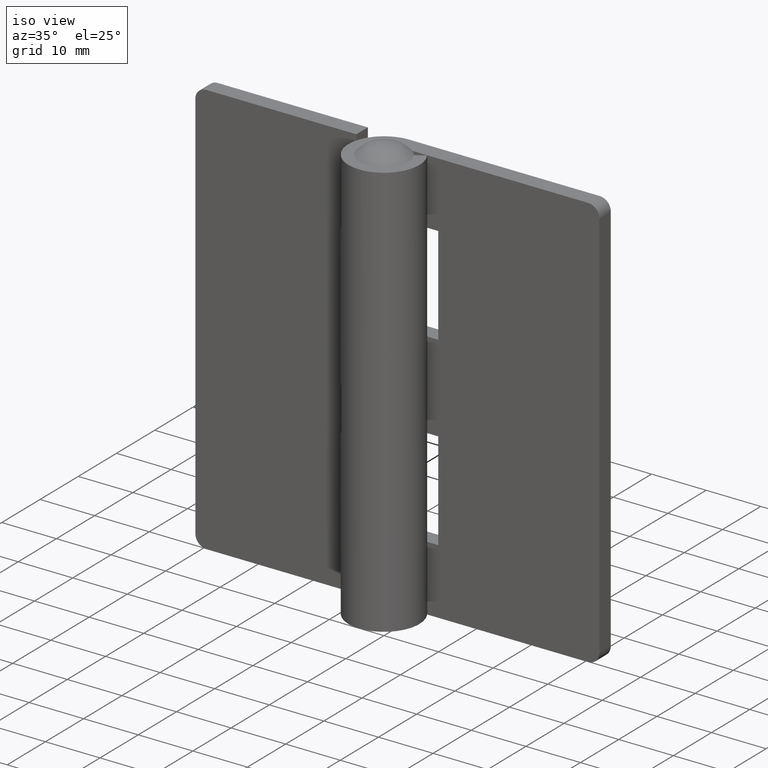
[diagram: clean part render]
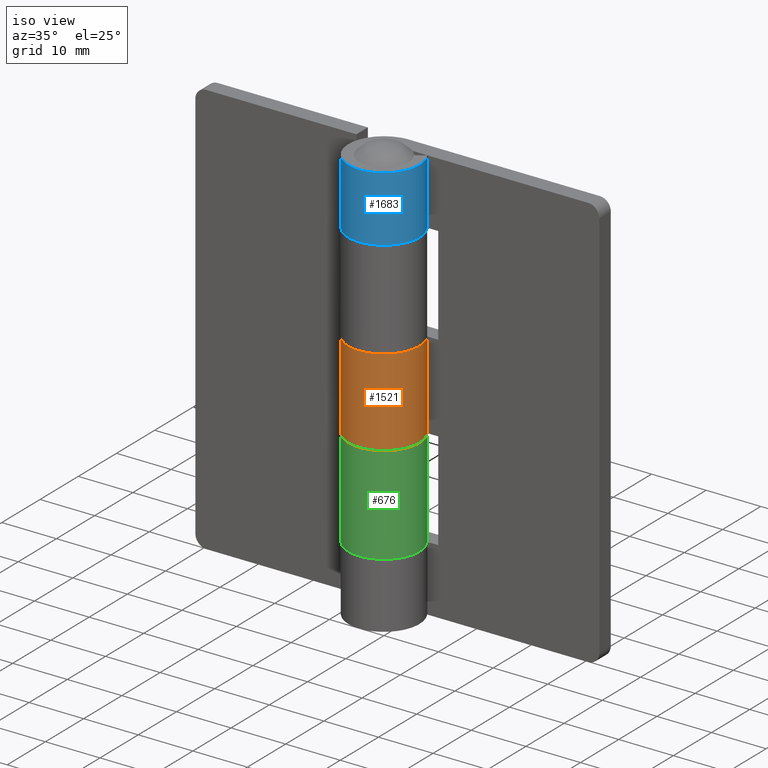
[diagram: same view with three faces highlighted in distinct colors, each labeled with its STEP entity id]
A machine part, iso view with three faces highlighted in distinct colors.
Their STEP definitions:

[orange] entity #1521 — the highlighted face is a freeform B-spline surface patch.
#1132=CARTESIAN_POINT('',(5.508856505664310,3.450000000000000,30.0));
#1133=VERTEX_POINT('',#1132);
#1139=CARTESIAN_POINT('',(0.0,6.500000000000000,30.0));
#1140=VERTEX_POINT('',#1139);
#1141=CARTESIAN_POINT('',(5.508856505664310,3.450000000000000,30.0));
#1142=CARTESIAN_POINT('',(8.180823551310168,-0.816516823862848,29.999999999999993));
#1143=CARTESIAN_POINT('',(4.718296452593100,-4.470758166737199,30.0));
#1144=CARTESIAN_POINT('',(1.255769353876034,-8.124999509611548,29.999999999999993));
#1145=CARTESIAN_POINT('',(-3.148412298286228,-5.686607072763162,30.0));
#1146=CARTESIAN_POINT('',(-7.552593950448501,-3.248214635914773,29.999999999999993));
#1147=CARTESIAN_POINT('',(-6.293367380542810,1.625892682042617,30.0));
#1148=CARTESIAN_POINT('',(-5.034140810637118,6.500000000000000,29.999999999999993));
#1149=CARTESIAN_POINT('',(0.0,6.500000000000000,30.0));
#1157=(BOUNDED_CURVE()B_SPLINE_CURVE(2,(#1141,#1142,#1143,#1144,#1145,#1146,#1147,#1148,#1149),.UNSPECIFIED.,.F.,.U.)B_SPLINE_CURVE_WITH_KNOTS((3,2,2,2,3),(0.0,0.250000000000000,0.500000000000000,0.750000000000000,1.0),.UNSPECIFIED.)CURVE()GEOMETRIC_REPRESENTATION_ITEM()RATIONAL_B_SPLINE_CURVE((1.0,0.790612843210526,1.0,0.790612843210526,1.0,0.790612843210526,1.0,0.790612843210526,1.0))REPRESENTATION_ITEM(''));
#1158=EDGE_CURVE('',#1133,#1140,#1157,.T.);
#1288=CARTESIAN_POINT('',(0.0,6.500000000000000,46.0));
#1289=VERTEX_POINT('',#1288);
#1295=CARTESIAN_POINT('',(5.508856505664310,3.450000000000000,46.0));
#1296=VERTEX_POINT('',#1295);
#1297=CARTESIAN_POINT('',(0.0,6.500000000000000,46.0));
#1298=CARTESIAN_POINT('',(-5.034140810637116,6.500000000000000,46.0));
#1299=CARTESIAN_POINT('',(-6.293367380542809,1.625892682042621,46.0));
#1300=CARTESIAN_POINT('',(-7.552593950448502,-3.248214635914765,46.0));
#1301=CARTESIAN_POINT('',(-3.148412298286237,-5.686607072763158,46.0));
#1302=CARTESIAN_POINT('',(1.255769353876027,-8.124999509611552,46.0));
#1303=CARTESIAN_POINT('',(4.718296452593097,-4.470758166737202,46.0));
#1304=CARTESIAN_POINT('',(8.180823551310164,-0.816516823862857,46.0));
#1305=CARTESIAN_POINT('',(5.508856505664316,3.449999999999993,46.0));
#1313=(BOUNDED_CURVE()B_SPLINE_CURVE(2,(#1297,#1298,#1299,#1300,#1301,#1302,#1303,#1304,#1305),.UNSPECIFIED.,.F.,.U.)B_SPLINE_CURVE_WITH_KNOTS((3,2,2,2,3),(0.0,0.250000000000000,0.500000000000000,0.750000000000000,1.0),.UNSPECIFIED.)CURVE()GEOMETRIC_REPRESENTATION_ITEM()RATIONAL_B_SPLINE_CURVE((1.0,0.790612843210526,1.0,0.790612843210526,1.0,0.790612843210526,1.0,0.790612843210526,1.0))REPRESENTATION_ITEM(''));
#1314=EDGE_CURVE('',#1289,#1296,#1313,.T.);
#1485=CARTESIAN_POINT('',(0.277015332386252,6.494094433069394,46.400000000000013));
#1486=CARTESIAN_POINT('',(0.277015332386252,6.494094433069394,29.589999999999989));
#1487=CARTESIAN_POINT('',(-7.887180295432386,6.842350435321217,46.400000000000006));
#1488=CARTESIAN_POINT('',(-7.887180295432386,6.842350435321217,29.589999999999996));
#1489=CARTESIAN_POINT('',(-6.389966104560965,-1.190937942363890,46.400000000000013));
#1490=CARTESIAN_POINT('',(-6.389966104560965,-1.190937942363890,29.589999999999989));
#1491=CARTESIAN_POINT('',(-4.892751913689542,-9.224226320048999,46.400000000000006));
#1492=CARTESIAN_POINT('',(-4.892751913689542,-9.224226320048999,29.589999999999996));
#1493=CARTESIAN_POINT('',(2.597843892498850,-5.958288941483653,46.400000000000013));
#1494=CARTESIAN_POINT('',(2.597843892498850,-5.958288941483653,29.589999999999989));
#1495=CARTESIAN_POINT('',(10.088439698687242,-2.692351562918307,46.400000000000006));
#1496=CARTESIAN_POINT('',(10.088439698687242,-2.692351562918307,29.589999999999996));
#1497=CARTESIAN_POINT('',(5.221190659284190,3.871584701308174,46.400000000000013));
#1498=CARTESIAN_POINT('',(5.221190659284190,3.871584701308174,29.589999999999989));
#1506=(BOUNDED_SURFACE()B_SPLINE_SURFACE(1,2,((#1485,#1487,#1489,#1491,#1493,#1495,#1497),(#1486,#1488,#1490,#1492,#1494,#1496,#1498)),.UNSPECIFIED.,.F.,.F.,.U.)B_SPLINE_SURFACE_WITH_KNOTS((2,2),(3,2,2,3),(0.0,16.810000000000009),(0.0,12.540911261256831,25.081822522513669,37.622733783770499),.UNSPECIFIED.)GEOMETRIC_REPRESENTATION_ITEM()RATIONAL_B_SPLINE_SURFACE(((1.0,0.622514636637620,1.0,0.622514636637620,1.0,0.622514636637620,1.0),(1.0,0.622514636637620,1.0,0.622514636637620,1.0,0.622514636637620,1.0)))REPRESENTATION_ITEM('')SURFACE());
#1507=CARTESIAN_POINT('',(0.0,6.500000000000000,46.0));
#1508=CARTESIAN_POINT('',(0.0,6.500000000000000,30.0));
#1509=QUASI_UNIFORM_CURVE('',1,(#1507,#1508),.UNSPECIFIED.,.F.,.U.);
#1510=EDGE_CURVE('',#1289,#1140,#1509,.T.);
#1511=ORIENTED_EDGE('',*,*,#1510,.T.);
#1512=ORIENTED_EDGE('',*,*,#1158,.F.);
#1513=CARTESIAN_POINT('',(5.508856505664310,3.450000000000000,46.0));
#1514=CARTESIAN_POINT('',(5.508856505664310,3.450000000000000,30.0));
#1515=QUASI_UNIFORM_CURVE('',1,(#1513,#1514),.UNSPECIFIED.,.F.,.U.);
#1516=EDGE_CURVE('',#1296,#1133,#1515,.T.);
#1517=ORIENTED_EDGE('',*,*,#1516,.F.);
#1518=ORIENTED_EDGE('',*,*,#1314,.F.);
#1519=EDGE_LOOP('',(#1511,#1512,#1517,#1518));
#1520=FACE_OUTER_BOUND('',#1519,.T.);
#1521=ADVANCED_FACE('',(#1520),#1506,.T.);

[blue] entity #1683 — the highlighted face is a freeform B-spline surface patch.
#1238=CARTESIAN_POINT('',(5.508856505664310,3.450000000000000,64.0));
#1239=VERTEX_POINT('',#1238);
#1245=CARTESIAN_POINT('',(0.0,6.500000000000000,64.0));
#1246=VERTEX_POINT('',#1245);
#1247=CARTESIAN_POINT('',(5.508856505664310,3.450000000000000,64.0));
#1248=CARTESIAN_POINT('',(8.180823551310168,-0.816516823862848,63.999999999999993));
#1249=CARTESIAN_POINT('',(4.718296452593100,-4.470758166737199,64.0));
#1250=CARTESIAN_POINT('',(1.255769353876034,-8.124999509611548,63.999999999999993));
#1251=CARTESIAN_POINT('',(-3.148412298286228,-5.686607072763162,64.0));
#1252=CARTESIAN_POINT('',(-7.552593950448501,-3.248214635914773,63.999999999999993));
#1253=CARTESIAN_POINT('',(-6.293367380542810,1.625892682042617,64.0));
#1254=CARTESIAN_POINT('',(-5.034140810637118,6.500000000000000,63.999999999999993));
#1255=CARTESIAN_POINT('',(0.0,6.500000000000000,64.0));
#1263=(BOUNDED_CURVE()B_SPLINE_CURVE(2,(#1247,#1248,#1249,#1250,#1251,#1252,#1253,#1254,#1255),.UNSPECIFIED.,.F.,.U.)B_SPLINE_CURVE_WITH_KNOTS((3,2,2,2,3),(0.0,0.250000000000000,0.500000000000000,0.750000000000000,1.0),.UNSPECIFIED.)CURVE()GEOMETRIC_REPRESENTATION_ITEM()RATIONAL_B_SPLINE_CURVE((1.0,0.790612843210526,1.0,0.790612843210526,1.0,0.790612843210526,1.0,0.790612843210526,1.0))REPRESENTATION_ITEM(''));
#1264=EDGE_CURVE('',#1239,#1246,#1263,.T.);
#1428=CARTESIAN_POINT('',(-1.193991E-015,6.500000000000000,76.0));
#1429=VERTEX_POINT('',#1428);
#1435=CARTESIAN_POINT('',(5.508856505664310,3.450000000000000,76.0));
#1436=VERTEX_POINT('',#1435);
#1437=CARTESIAN_POINT('',(5.508856505664310,3.450000000000000,76.0));
#1438=CARTESIAN_POINT('',(8.180823551310168,-0.816516823862848,76.0));
#1439=CARTESIAN_POINT('',(4.718296452593100,-4.470758166737199,76.0));
#1440=CARTESIAN_POINT('',(1.255769353876034,-8.124999509611548,76.0));
#1441=CARTESIAN_POINT('',(-3.148412298286228,-5.686607072763162,76.0));
#1442=CARTESIAN_POINT('',(-7.552593950448501,-3.248214635914773,76.0));
#1443=CARTESIAN_POINT('',(-6.293367380542810,1.625892682042617,76.0));
#1444=CARTESIAN_POINT('',(-5.034140810637118,6.500000000000000,76.0));
#1445=CARTESIAN_POINT('',(0.0,6.500000000000000,76.0));
#1453=(BOUNDED_CURVE()B_SPLINE_CURVE(2,(#1437,#1438,#1439,#1440,#1441,#1442,#1443,#1444,#1445),.UNSPECIFIED.,.F.,.U.)B_SPLINE_CURVE_WITH_KNOTS((3,2,2,2,3),(0.0,0.250000000000000,0.500000000000000,0.750000000000000,1.0),.UNSPECIFIED.)CURVE()GEOMETRIC_REPRESENTATION_ITEM()RATIONAL_B_SPLINE_CURVE((1.0,0.790612843210526,1.0,0.790612843210526,1.0,0.790612843210526,1.0,0.790612843210526,1.0))REPRESENTATION_ITEM(''));
#1454=EDGE_CURVE('',#1436,#1429,#1453,.T.);
#1534=CARTESIAN_POINT('',(5.508856505664310,3.450000000000000,76.0));
#1535=CARTESIAN_POINT('',(5.508856505664310,3.450000000000000,64.0));
#1536=QUASI_UNIFORM_CURVE('',1,(#1534,#1535),.UNSPECIFIED.,.F.,.U.);
#1537=EDGE_CURVE('',#1436,#1239,#1536,.T.);
#1645=CARTESIAN_POINT('',(-1.193991E-015,6.500000000000000,76.0));
#1646=CARTESIAN_POINT('',(0.0,6.500000000000000,64.0));
#1647=QUASI_UNIFORM_CURVE('',1,(#1645,#1646),.UNSPECIFIED.,.F.,.U.);
#1648=EDGE_CURVE('',#1429,#1246,#1647,.T.);
#1655=CARTESIAN_POINT('',(0.170150164001184,6.497772612341120,76.300000000000011));
#1656=CARTESIAN_POINT('',(0.170150164001184,6.497772612341120,63.692500000000003));
#1657=CARTESIAN_POINT('',(-7.901828068042892,6.709144801233618,76.300000000000011));
#1658=CARTESIAN_POINT('',(-7.901828068042892,6.709144801233618,63.692500000000010));
#1659=CARTESIAN_POINT('',(-6.384157458059098,-1.221692903600720,76.300000000000011));
#1660=CARTESIAN_POINT('',(-6.384157458059098,-1.221692903600720,63.692500000000003));
#1661=CARTESIAN_POINT('',(-4.866486848075306,-9.152530608435061,76.300000000000011));
#1662=CARTESIAN_POINT('',(-4.866486848075306,-9.152530608435061,63.692500000000010));
#1663=CARTESIAN_POINT('',(2.557146225977617,-5.975868403752578,76.300000000000011));
#1664=CARTESIAN_POINT('',(2.557146225977617,-5.975868403752578,63.692500000000003));
#1665=CARTESIAN_POINT('',(9.980779300030537,-2.799206199070098,76.300000000000011));
#1666=CARTESIAN_POINT('',(9.980779300030537,-2.799206199070098,63.692500000000010));
#1667=CARTESIAN_POINT('',(5.291750869316074,3.774569212121103,76.300000000000011));
#1668=CARTESIAN_POINT('',(5.291750869316074,3.774569212121103,63.692500000000003));
#1676=(BOUNDED_SURFACE()B_SPLINE_SURFACE(1,2,((#1655,#1657,#1659,#1661,#1663,#1665,#1667),(#1656,#1658,#1660,#1662,#1664,#1666,#1668)),.UNSPECIFIED.,.F.,.F.,.U.)B_SPLINE_SURFACE_WITH_KNOTS((2,2),(3,2,2,3),(0.0,12.607500000000019),(0.0,12.447814807346180,24.895629614692371,37.343444422038552),.UNSPECIFIED.)GEOMETRIC_REPRESENTATION_ITEM()RATIONAL_B_SPLINE_SURFACE(((1.0,0.627057105746662,1.0,0.627057105746662,1.0,0.627057105746662,1.0),(1.0,0.627057105746662,1.0,0.627057105746662,1.0,0.627057105746662,1.0)))REPRESENTATION_ITEM('')SURFACE());
#1677=ORIENTED_EDGE('',*,*,#1648,.T.);
#1678=ORIENTED_EDGE('',*,*,#1264,.F.);
#1679=ORIENTED_EDGE('',*,*,#1537,.F.);
#1680=ORIENTED_EDGE('',*,*,#1454,.T.);
#1681=EDGE_LOOP('',(#1677,#1678,#1679,#1680));
#1682=FACE_OUTER_BOUND('',#1681,.T.);
#1683=ADVANCED_FACE('',(#1682),#1676,.T.);

[green] entity #676 — the highlighted face is a freeform B-spline surface patch.
#201=CARTESIAN_POINT('',(-5.508856505664310,3.450000000000000,30.0));
#202=VERTEX_POINT('',#201);
#208=CARTESIAN_POINT('',(3.979971E-016,6.500000000000000,30.0));
#209=VERTEX_POINT('',#208);
#210=CARTESIAN_POINT('',(0.0,6.500000000000000,30.0));
#211=CARTESIAN_POINT('',(5.034140810637116,6.500000000000000,30.000000000000007));
#212=CARTESIAN_POINT('',(6.293367380542809,1.625892682042621,30.0));
#213=CARTESIAN_POINT('',(7.552593950448502,-3.248214635914765,30.000000000000007));
#214=CARTESIAN_POINT('',(3.148412298286237,-5.686607072763158,30.0));
#215=CARTESIAN_POINT('',(-1.255769353876027,-8.124999509611552,30.000000000000007));
#216=CARTESIAN_POINT('',(-4.718296452593097,-4.470758166737202,30.0));
#217=CARTESIAN_POINT('',(-8.180823551310164,-0.816516823862857,30.000000000000007));
#218=CARTESIAN_POINT('',(-5.508856505664316,3.449999999999993,30.0));
#226=(BOUNDED_CURVE()B_SPLINE_CURVE(2,(#210,#211,#212,#213,#214,#215,#216,#217,#218),.UNSPECIFIED.,.F.,.U.)B_SPLINE_CURVE_WITH_KNOTS((3,2,2,2,3),(0.0,0.250000000000000,0.500000000000000,0.750000000000000,1.0),.UNSPECIFIED.)CURVE()GEOMETRIC_REPRESENTATION_ITEM()RATIONAL_B_SPLINE_CURVE((1.0,0.790612843210526,1.0,0.790612843210526,1.0,0.790612843210526,1.0,0.790612843210526,1.0))REPRESENTATION_ITEM(''));
#227=EDGE_CURVE('',#209,#202,#226,.T.);
#391=CARTESIAN_POINT('',(0.0,6.500000000000000,12.0));
#392=VERTEX_POINT('',#391);
#398=CARTESIAN_POINT('',(-5.508856505664310,3.450000000000000,12.0));
#399=VERTEX_POINT('',#398);
#400=CARTESIAN_POINT('',(-5.508856505664310,3.450000000000000,12.0));
#401=CARTESIAN_POINT('',(-8.180823551310168,-0.816516823862848,12.0));
#402=CARTESIAN_POINT('',(-4.718296452593100,-4.470758166737199,12.0));
#403=CARTESIAN_POINT('',(-1.255769353876034,-8.124999509611548,12.0));
#404=CARTESIAN_POINT('',(3.148412298286228,-5.686607072763162,12.0));
#405=CARTESIAN_POINT('',(7.552593950448501,-3.248214635914773,12.0));
#406=CARTESIAN_POINT('',(6.293367380542810,1.625892682042617,12.0));
#407=CARTESIAN_POINT('',(5.034140810637118,6.500000000000000,12.0));
#408=CARTESIAN_POINT('',(0.0,6.500000000000000,12.0));
#416=(BOUNDED_CURVE()B_SPLINE_CURVE(2,(#400,#401,#402,#403,#404,#405,#406,#407,#408),.UNSPECIFIED.,.F.,.U.)B_SPLINE_CURVE_WITH_KNOTS((3,2,2,2,3),(0.0,0.250000000000000,0.500000000000000,0.750000000000000,1.0),.UNSPECIFIED.)CURVE()GEOMETRIC_REPRESENTATION_ITEM()RATIONAL_B_SPLINE_CURVE((1.0,0.790612843210526,1.0,0.790612843210526,1.0,0.790612843210526,1.0,0.790612843210526,1.0))REPRESENTATION_ITEM(''));
#417=EDGE_CURVE('',#399,#392,#416,.T.);
#634=CARTESIAN_POINT('',(3.979971E-016,6.500000000000000,30.0));
#635=CARTESIAN_POINT('',(0.0,6.500000000000000,12.0));
#636=QUASI_UNIFORM_CURVE('',1,(#634,#635),.UNSPECIFIED.,.F.,.U.);
#637=EDGE_CURVE('',#209,#392,#636,.T.);
#644=CARTESIAN_POINT('',(-5.416658286464411,3.593022823149944,30.449999999999999));
#645=CARTESIAN_POINT('',(-5.416658286464411,3.593022823149944,11.538750000000000));
#646=CARTESIAN_POINT('',(-9.880157356995030,-3.135921137695837,30.450000000000006));
#647=CARTESIAN_POINT('',(-9.880157356995030,-3.135921137695837,11.538750000000000));
#648=CARTESIAN_POINT('',(-2.353109589289099,-6.059115055913335,30.449999999999999));
#649=CARTESIAN_POINT('',(-2.353109589289099,-6.059115055913335,11.538750000000000));
#650=CARTESIAN_POINT('',(5.173938178416831,-8.982308974130831,30.450000000000006));
#651=CARTESIAN_POINT('',(5.173938178416831,-8.982308974130831,11.538750000000000));
#652=CARTESIAN_POINT('',(6.421900925019841,-1.004583749236101,30.449999999999999));
#653=CARTESIAN_POINT('',(6.421900925019841,-1.004583749236101,11.538750000000000));
#654=CARTESIAN_POINT('',(7.669863671622848,6.973141475658627,30.450000000000006));
#655=CARTESIAN_POINT('',(7.669863671622848,6.973141475658627,11.538750000000000));
#656=CARTESIAN_POINT('',(-0.390310717097400,6.488270766862220,30.449999999999999));
#657=CARTESIAN_POINT('',(-0.390310717097400,6.488270766862220,11.538750000000000));
#665=(BOUNDED_SURFACE()B_SPLINE_SURFACE(1,2,((#644,#646,#648,#650,#652,#654,#656),(#645,#647,#649,#651,#653,#655,#657)),.UNSPECIFIED.,.F.,.F.,.U.)B_SPLINE_SURFACE_WITH_KNOTS((2,2),(3,2,2,3),(0.0,18.911249999999999),(0.0,12.447814807346189,24.895629614692371,37.343444422038559),.UNSPECIFIED.)GEOMETRIC_REPRESENTATION_ITEM()RATIONAL_B_SPLINE_SURFACE(((1.0,0.627057105746662,1.0,0.627057105746662,1.0,0.627057105746662,1.0),(1.0,0.627057105746662,1.0,0.627057105746662,1.0,0.627057105746662,1.0)))REPRESENTATION_ITEM('')SURFACE());
#666=ORIENTED_EDGE('',*,*,#227,.T.);
#667=CARTESIAN_POINT('',(-5.508856505664310,3.450000000000000,30.0));
#668=CARTESIAN_POINT('',(-5.508856505664310,3.450000000000000,12.0));
#669=QUASI_UNIFORM_CURVE('',1,(#667,#668),.UNSPECIFIED.,.F.,.U.);
#670=EDGE_CURVE('',#202,#399,#669,.T.);
#671=ORIENTED_EDGE('',*,*,#670,.T.);
#672=ORIENTED_EDGE('',*,*,#417,.T.);
#673=ORIENTED_EDGE('',*,*,#637,.F.);
#674=EDGE_LOOP('',(#666,#671,#672,#673));
#675=FACE_OUTER_BOUND('',#674,.T.);
#676=ADVANCED_FACE('',(#675),#665,.T.);